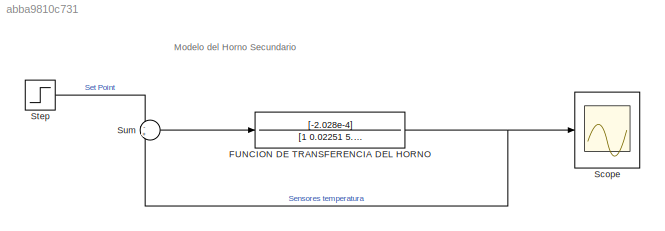
MODEL slx_abba9810c731
KIND model
CONFIG AbsTol = auto
CONFIG EnableMultiTasking = off
CONFIG FixedStep = auto
CONFIG MaxStep = auto
CONFIG MinStep = auto
CONFIG RelTol = 1e-3
CONFIG SampleTimeConstraint = Unconstrained
CONFIG SolverName = VariableStepAuto
CONFIG StartTime = 0.0
CONFIG StopTime = 5000
BLOCK [TransferFcn] FUNCION DE TRANSFERENCIA DEL HORNO
  Denominator = [1 0.02251 5.11e-05]
  Numerator = [-2.028e-4]
BLOCK [Scope] Scope
  ActiveDisplayYMaximum = 231.69002051769763
  ActiveDisplayYMinimum = -25.743335613077509
  ContainerLayout = {"WindowBounds":[128,48,1280,768],"gridDimensions":{"w":1,"h":1},"tileCount":1,"tileCoverage":1,"columnWeights":1,"rowWeights":1,"tileOccupancy":{}}
  Floating = off
  GraphicalSettings = {"Style":{"BackgroundColor":[0.12941176470588237,0.12941176470588237,0.12941176470588237],"AxesColor":[0.07058823529411765,0.07058823529411765,0.07058823529411765],"LabelsColor":[0.8509803921568627,0.8509803921568627,0.8509803921568627],"PreserveColors":false,"Visible":[true],"LineStyle":["-"],"LineWidth":[1.5],"BarWidth":[0.9],"LineColor":["auto"],"LineFaceAlpha":[1],"LineEdgeAlpha":[1],"Marker":...<+2417ch>
  MultipleDisplayCache = [{"MaxYLimMag":231.69002051769763,"MaxYLimReal":231.69002051769763,"MinYLimMag":0,"MinYLimReal":-25.743335613077509,"PlotAsMagnitudePhase":false,"ShowGrid":true,"ShowLegend":true,"Title":"%<SignalLabel>","YLabel":""}]
  NumInputPorts = 1
  ScopeFrameLocation = window
  ShowLegend = on
  WasSavedAsWebScope = on
  WindowPosition = [1.000000,41.000000,1536.000000,801.000000,]
BLOCK [Step] Step
  After = 248
  SampleTime = 0
BLOCK [Sum] Sum
  Inputs = -+
ANNOTATION (root): Modelo del Horno Secundario
NET FUNCION DE TRANSFERENCIA DEL HORNO:1 -> Scope:1, Sum:2
LINE Step:1 -> Sum:1
LINE Sum:1 -> FUNCION DE TRANSFERENCIA DEL HORNO:1
note: NET lines group one-source signal fan-out (src -> all destinations, sorted); 1:1 wires keep LINE
